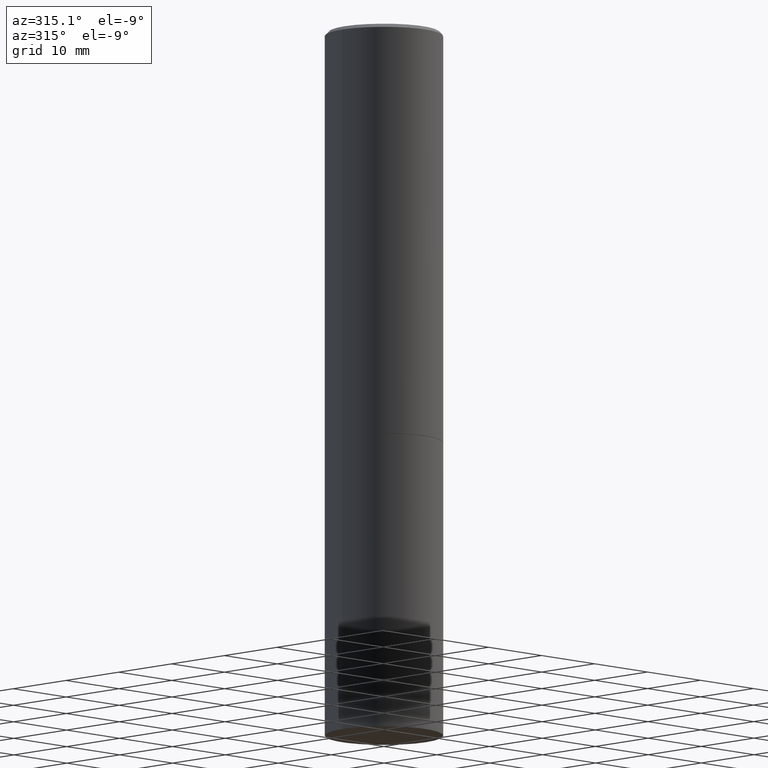
[diagram: clean part render]
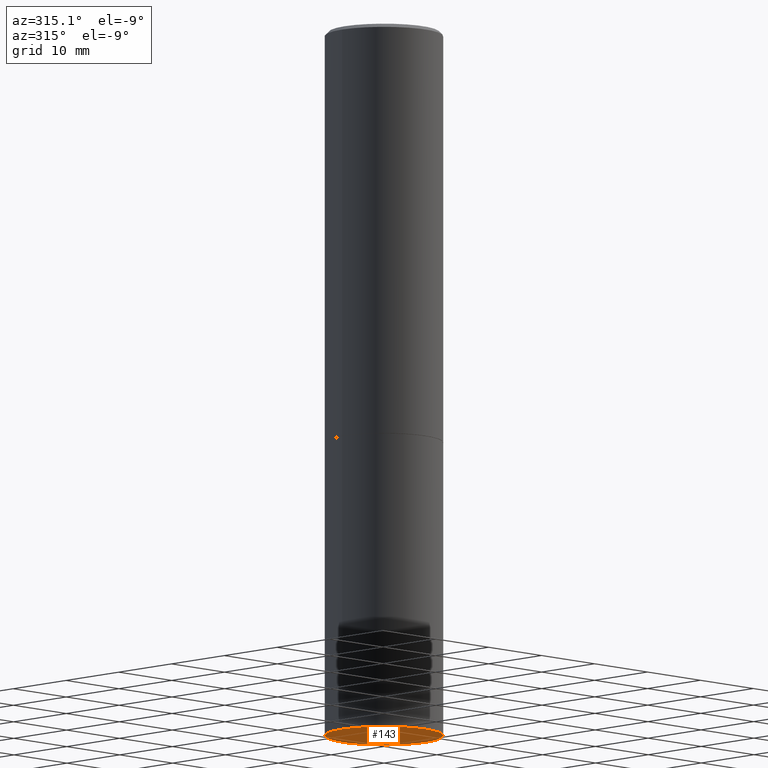
[diagram: same view with one face highlighted and labeled with its STEP entity id]
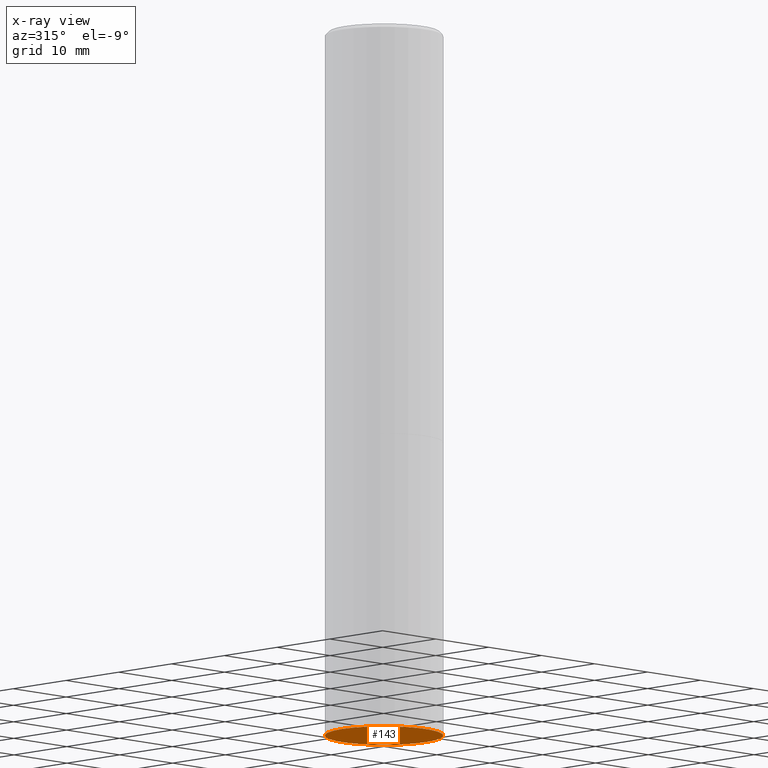
[diagram: x-ray of the same camera — body ghosted, the highlighted face saturated]
A machine part, auxiliary view. The second image highlights one B-rep face of the part: STEP entity #143.
The next image is the same camera in x-ray: the body ghosted, the highlighted face saturated — about 0% of this face is hidden behind the body in this view.
In plain terms, the highlighted planar face has unit normal (0, -0, -1).
Its self-contained STEP definition (entity closure, byte-faithful):
#1 = AXIS2_PLACEMENT_3D ( 'NONE', #196, #319, #249 ) ;
#14 = CARTESIAN_POINT ( 'NONE',  ( 2.182175836777049855E-15, 0.3124999999999868994, -3.750000000000001332 ) ) ;
#41 = FACE_OUTER_BOUND ( 'NONE', #198, .T. ) ;
#83 = VERTEX_POINT ( 'NONE', #171 ) ;
#101 = AXIS2_PLACEMENT_3D ( 'NONE', #14, #126, #345 ) ;
#125 = DIRECTION ( 'NONE',  ( -2.445468806185136597E-29, 3.491481338843145583E-15, 1.000000000000000000 ) ) ;
#126 = DIRECTION ( 'NONE',  ( 2.438088387897960049E-29, -3.491481338843145188E-15, -1.000000000000000000 ) ) ;
#135 = AXIS2_PLACEMENT_3D ( 'NONE', #199, #125, #174 ) ;
#143 = ADVANCED_FACE ( 'NONE', ( #41 ), #217, .T. ) ;
#163 = CIRCLE ( 'NONE', #1, 0.3125000000000000000 ) ;
#171 = CARTESIAN_POINT ( 'NONE',  ( 0.3125000000000000000, -1.527523085743875734E-14, -3.750000000000000000 ) ) ;
#174 = DIRECTION ( 'NONE',  ( 1.000000000000000000, -6.982962677686269077E-15, 0.000000000000000000 ) ) ;
#191 = ORIENTED_EDGE ( 'NONE', *, *, #310, .F. ) ;
#196 = CARTESIAN_POINT ( 'NONE',  ( 9.170508023194262238E-29, -1.309305502066179741E-14, -3.750000000000000000 ) ) ;
#198 = EDGE_LOOP ( 'NONE', ( #342, #191 ) ) ;
#199 = CARTESIAN_POINT ( 'NONE',  ( 9.170508023194262238E-29, -1.309305502066179741E-14, -3.750000000000000000 ) ) ;
#204 = CIRCLE ( 'NONE', #135, 0.3125000000000000000 ) ;
#217 = PLANE ( 'NONE',  #101 ) ;
#233 = CARTESIAN_POINT ( 'NONE',  ( -0.3125000000000000000, -8.144889175440275750E-15, -3.750000000000000000 ) ) ;
#243 = VERTEX_POINT ( 'NONE', #233 ) ;
#249 = DIRECTION ( 'NONE',  ( 1.000000000000000000, -6.982962677686269077E-15, 0.000000000000000000 ) ) ;
#265 = EDGE_CURVE ( 'NONE', #83, #243, #204, .T. ) ;
#310 = EDGE_CURVE ( 'NONE', #243, #83, #163, .T. ) ;
#319 = DIRECTION ( 'NONE',  ( -2.445468806185136597E-29, 3.491481338843145583E-15, 1.000000000000000000 ) ) ;
#342 = ORIENTED_EDGE ( 'NONE', *, *, #265, .F. ) ;
#345 = DIRECTION ( 'NONE',  ( -1.000000000000000000, 6.982962677686265922E-15, -4.876176775795935793E-29 ) ) ;